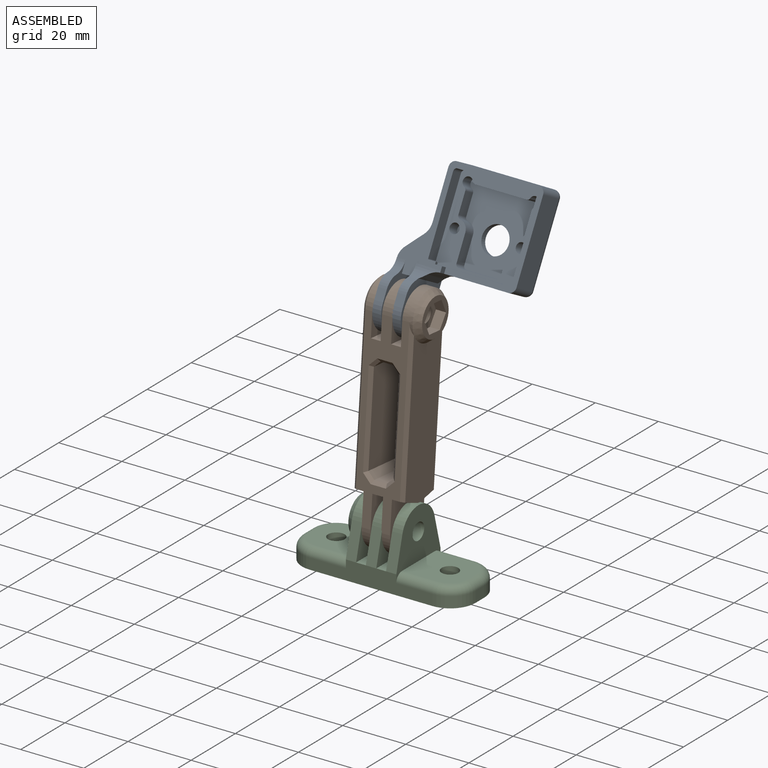
[diagram: assembled view]
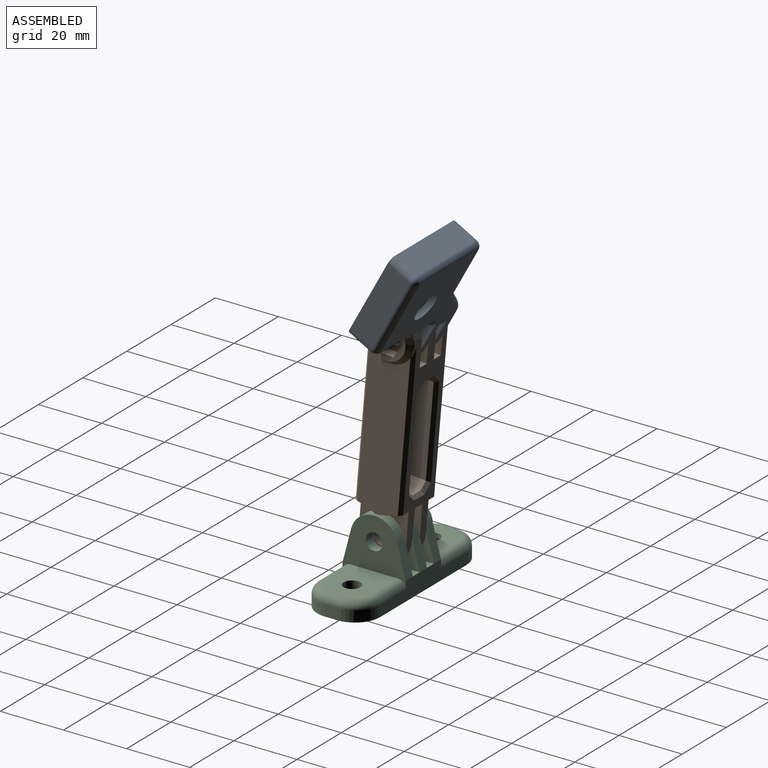
[diagram: assembled view, second angle]
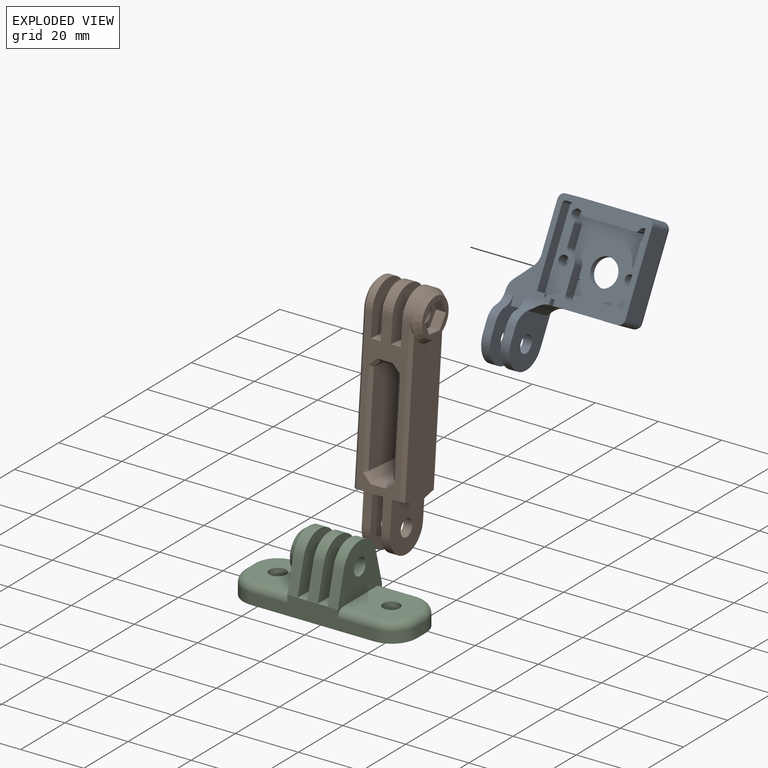
[diagram: exploded view]
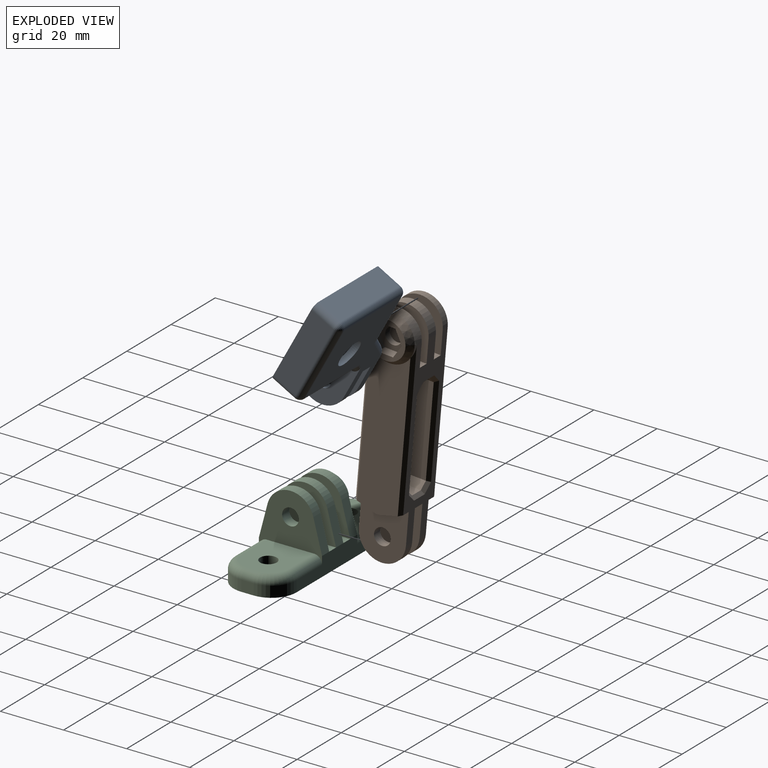
[diagram: exploded view, second angle]
ASSEMBLY  parts=3 mates=2
PART A: 92 faces, bbox 39x48.1x15.1 mm
  f0: plane 24.5x4mm, normal (0,1,0), area 74mm2, adj f8,f14,f73,f74,f75,f77,f78,f79
  f1: plane 23.5x4mm, normal (1,0,0), area 94mm2, adj f8,f14,f89,f90
  f2: plane 3.5x2.8mm, normal (0,0,1), area 9.8mm2, adj f4,f6,f42,f62
  f3: plane 38.5x35.5mm, normal (0,0,-1), area 711.2mm2, adj f4,f38,f42,f43,f46,f50,f51,f52
  f4: cylinder r=7.5mm len=15mm, axis (-1,0,0), area 66mm2, adj f2,f3,f42,f62
  f5: cylinder r=2.65mm len=5.3mm, axis (-1,0,0), area 46.6mm2, adj f42,f62
  f6: cylinder r=5mm len=4.33mm, axis (-1,0,0), area 14.7mm2, adj f2,f42,f62,f63
  f7: plane 21.43x8mm, normal (0,1,0), area 137.5mm2, adj f8,f40,f41,f54,f58,f81
  f8: plane 37.49x32mm, normal (0,0,1), area 216mm2, adj f0,f1,f7,f9,f10,f11,f12,f13
  f9: plane 14.93x8mm, normal (1,0,0), area 119.4mm2, adj f8,f51,f56,f85
  f10: plane 25x8mm, normal (-1,0,0), area 200mm2, adj f8,f53,f81,f83
  f11: plane 26x8mm, normal (0,-1,0), area 208mm2, adj f8,f52,f83,f85
  f12: plane 23.5x4mm, normal (-1,0,0), area 94mm2, adj f8,f14,f87,f88
  f13: plane 24.5x4mm, normal (0,-1,0), area 60.8mm2, adj f8,f14,f39,f40,f41,f65,f66,f68
  f14: plane 26.5x25.9mm, normal (0,0,1), area 273.6mm2, adj f0,f1,f12,f13,f15,f16,f17,f18
  f15: plane 6.44x4mm, normal (1,0,0), area 25.7mm2, adj f14,f23,f30,f31
  f16: cylinder r=1.55mm len=4mm, axis (0,0,1), area 24.2mm2, adj f14,f23,f30,f37
  f17: plane 16.31x4mm, normal (0,1,0), area 65.2mm2, adj f14,f23,f36,f37
  f18: cylinder r=1.55mm len=4mm, axis (0,0,1), area 24.2mm2, adj f14,f23,f35,f36
  f19: plane 6.44x4mm, normal (-1,0,0), area 25.7mm2, adj f14,f23,f34,f35
  f20: plane 8.25x4mm, normal (-1,0,0), area 33mm2, adj f14,f23,f29,f33
  f21: plane 12x4mm, normal (0,-1,0), area 48mm2, adj f14,f23,f32,f33
  f22: plane 8.25x4mm, normal (1,0,0), area 33mm2, adj f14,f23,f28,f32
  f23: plane 24.1x23.55mm, normal (0,0,1), area 334.3mm2, adj f15,f16,f17,f18,f19,f20,f21,f22
  f24: cylinder r=1.55mm len=4mm, axis (0,0,1), area 39mm2, adj f14,f25
  f25: plane 3.1x3.1mm, normal (0,0,1), area 7.5mm2, adj f24
  f26: cylinder r=1.55mm len=4mm, axis (0,0,1), area 39mm2, adj f14,f27
  f27: plane 3.1x3.1mm, normal (0,0,1), area 7.5mm2, adj f26
  f28: cylinder r=3mm len=4mm, axis (0,0,1), area 17.3mm2, adj f14,f22,f23,f31
  f29: cylinder r=3mm len=4mm, axis (0,0,1), area 17.3mm2, adj f14,f20,f23,f34
  f30: cylinder r=1mm len=4mm, axis (0,0,1), area 4.7mm2, adj f14,f15,f16,f23
  f31: cylinder r=1mm len=4mm, axis (0,0,1), area 5.8mm2, adj f14,f15,f23,f28
  f32: cylinder r=1mm len=4mm, axis (0,0,1), area 6.3mm2, adj f14,f21,f22,f23
  f33: cylinder r=1mm len=4mm, axis (0,0,-1), area 6.3mm2, adj f14,f20,f21,f23
  f34: cylinder r=1mm len=4mm, axis (0,0,1), area 5.8mm2, adj f14,f19,f23,f29
  f35: cylinder r=1mm len=4mm, axis (0,0,1), area 4.7mm2, adj f14,f18,f19,f23
  f36: cylinder r=1mm len=4mm, axis (0,0,1), area 4.7mm2, adj f14,f17,f18,f23
  f37: cylinder r=1mm len=4mm, axis (0,0,1), area 4.7mm2, adj f14,f16,f17,f23
  f38: cylinder r=4.25mm len=8.5mm, axis (0,0,1), area 53.4mm2, adj f3,f23
  f39: plane 2.04x1.75mm, normal (-1,0,0), area 3.5mm2, adj f8,f13,f41,f58,f63
  f40: plane 2x1.75mm, normal (1,0,0), area 3.5mm2, adj f7,f8,f13,f41
  f41: plane 17.1x1.75mm, normal (0,0,1), area 29.9mm2, adj f7,f13,f39,f40,f58
  f42: plane 18.83x15mm, normal (-1,0,0), area 189.9mm2, adj f2,f3,f4,f5,f6,f49,f55,f63
  f43: cylinder r=7.5mm len=15mm, axis (-1,0,0), area 66mm2, adj f3,f45,f46,f61
  f44: cylinder r=2.65mm len=5.3mm, axis (-1,0,0), area 46.6mm2, adj f46,f61
  f45: plane 3.5x2.8mm, normal (0,0,1), area 9.8mm2, adj f43,f46,f47,f61
  f46: plane 19.43x15.01mm, normal (1,0,0), area 224.7mm2, adj f3,f43,f44,f45,f47,f50,f64,f91
  f47: cylinder r=5mm len=4.33mm, axis (-1,0,0), area 14.7mm2, adj f45,f46,f61,f64
  f48: plane 8x4.57mm, normal (0.71,-0.71,0), area 51.7mm2, adj f8,f50,f56,f91
  f49: plane 9.7x1.64mm, normal (-0.71,0.71,0), area 19.5mm2, adj f42,f55,f58,f63
  f50: cylinder r=2mm len=10.91mm, axis (0.71,0.71,0), area 30.6mm2, adj f3,f46,f48,f57,f91
  f51: cylinder r=2mm len=17.83mm, axis (0,1,0), area 50.2mm2, adj f3,f9,f57,f86
  f52: cylinder r=2mm len=26mm, axis (1,0,0), area 81.7mm2, adj f3,f11,f84,f86
  f53: cylinder r=2mm len=25mm, axis (0,-1,0), area 78.5mm2, adj f3,f10,f82,f84
  f54: cylinder r=2mm len=24.33mm, axis (-1,0,0), area 70.6mm2, adj f3,f7,f59,f82
  f55: cylinder r=2mm len=5mm, axis (-0.71,-0.71,0), area 7.8mm2, adj f3,f42,f49,f59
  f56: cylinder r=5mm len=8mm, axis (0,0,-1), area 31.4mm2, adj f8,f9,f48,f57
  f57: bspline ~3.54x3.46mm, area 8.4mm2, adj f50,f51,f56
  f58: cylinder r=5mm len=8.47mm, axis (0,0,-1), area 31.8mm2, adj f7,f39,f41,f49,f59,f63
  f59: bspline ~3.54x3.46mm, area 8.4mm2, adj f54,f55,f58
  f60: plane 10x3.4mm, normal (0,1,0), area 34mm2, adj f3,f8,f61,f62
  f61: plane 19.66x15mm, normal (-1,0,0), area 190.4mm2, adj f3,f8,f43,f44,f45,f47,f60,f64
  f62: plane 19.66x15mm, normal (1,0,0), area 190.4mm2, adj f2,f3,f4,f5,f6,f8,f60,f63
  f63: cylinder r=5mm len=7.75mm, axis (-1,0,0), area 23.4mm2, adj f6,f8,f39,f42,f49,f58,f62
  f64: cylinder r=5mm len=4.33mm, axis (-1,0,0), area 14.7mm2, adj f8,f46,f47,f61,f91
  f65: plane 2.34x0.45mm, normal (0,0,-1), area 0.9mm2, adj f13,f66,f72,f88
  f66: plane 1x0.75mm, normal (-1,0,0), area 0.7mm2, adj f8,f13,f65,f67,f72
  f67: plane 2.47x0.7mm, normal (0,-1,0), area 1.7mm2, adj f8,f66,f72,f88
  f68: plane 1x0.75mm, normal (1,0,0), area 0.7mm2, adj f8,f13,f69,f70,f71
  f69: plane 2.34x0.45mm, normal (0,0,-1), area 0.9mm2, adj f13,f68,f71,f89
  f70: plane 2.47x0.7mm, normal (0,-1,0), area 1.7mm2, adj f8,f68,f71,f89
  f71: plane 2.48x0.31mm, normal (0,-0.71,-0.71), area 1mm2, adj f68,f69,f70,f89
  f72: plane 2.48x0.31mm, normal (0,-0.71,-0.71), area 1mm2, adj f65,f66,f67,f88
  f73: plane 2x0.4mm, normal (-1,0,0), area 0.8mm2, adj f0,f14,f75,f76
  f74: plane 2x0.4mm, normal (1,0,0), area 0.8mm2, adj f0,f14,f75,f76
  f75: plane 6x0.4mm, normal (0,0,-1), area 2.4mm2, adj f0,f73,f74,f76
  f76: plane 6x2mm, normal (0,1,0), area 12mm2, adj f14,f73,f74,f75
  f77: plane 2x0.4mm, normal (-1,0,0), area 0.8mm2, adj f0,f14,f79,f80
  f78: plane 2x0.4mm, normal (1,0,0), area 0.8mm2, adj f0,f14,f79,f80
  f79: plane 6x0.4mm, normal (0,0,-1), area 2.4mm2, adj f0,f77,f78,f80
  f80: plane 6x2mm, normal (0,1,0), area 12mm2, adj f14,f77,f78,f79
  f81: cylinder r=2mm len=8mm, axis (0,0,-1), area 25.1mm2, adj f7,f8,f10,f82
  f82: sphere r=2mm, area 6.3mm2, adj f53,f54,f81
  f83: cylinder r=2mm len=8mm, axis (0,0,1), area 25.1mm2, adj f8,f10,f11,f84
  f84: sphere r=2mm, area 6.3mm2, adj f52,f53,f83
  f85: cylinder r=2mm len=8mm, axis (0,0,-1), area 25.1mm2, adj f8,f9,f11,f86
  f86: sphere r=2mm, area 6.3mm2, adj f51,f52,f85
  f87: cylinder r=1mm len=4mm, axis (0,0,-1), area 6.3mm2, adj f0,f8,f12,f14
  f88: cylinder r=1mm len=4mm, axis (0,0,1), area 5mm2, adj f8,f12,f13,f14,f65,f67,f72
  f89: cylinder r=1mm len=4mm, axis (0,0,-1), area 5mm2, adj f1,f8,f13,f14,f69,f70,f71
  f90: cylinder r=1mm len=4mm, axis (0,0,1), area 6.3mm2, adj f0,f1,f8,f14
  f91: cylinder r=5mm len=9.93mm, axis (0,0,-1), area 35.8mm2, adj f8,f46,f48,f50,f64
PART B: 71 faces, bbox 75x18x15 mm
  f0: cylinder r=2.65mm len=5.3mm, axis (0,-1,0), area 34.1mm2, adj f14,f38
  f1: plane 12x12mm, normal (0,1,0), area 52mm2, adj f32,f33,f34,f35,f36,f37,f39
  f2: plane 48.26x13mm, normal (0,1,0), area 582.5mm2, adj f18,f39,f55,f56,f69,f70
  f3: plane 58.5x13mm, normal (0,-1,0), area 710.1mm2, adj f10,f23,f44,f45,f46,f67,f68
  f4: plane 60x14mm, normal (0,0,1), area 372.9mm2, adj f6,f7,f8,f9,f11,f12,f13,f14
  f5: plane 60x14mm, normal (0,0,-1), area 372.9mm2, adj f6,f7,f8,f9,f11,f12,f13,f14
  f6: cylinder r=7.5mm len=15mm, axis (0,-1,0), area 66mm2, adj f4,f5,f21,f24
  f7: cylinder r=7.5mm len=15mm, axis (0,-1,0), area 66mm2, adj f4,f5,f19,f22
  f8: cylinder r=7.5mm len=15mm, axis (0,-1,0), area 77.8mm2, adj f4,f5,f13,f17
  f9: cylinder r=7.5mm len=15mm, axis (0,-1,0), area 81.8mm2, adj f4,f5,f14,f39,f55,f56
  f10: cylinder r=2.65mm len=5.3mm, axis (0,-1,0), area 54.1mm2, adj f3,f16
  f11: cylinder r=7.5mm len=15mm, axis (0,-1,0), area 53mm2, adj f4,f5,f16,f46
  f12: plane 15x3.1mm, normal (-1,0,0), area 46.5mm2, adj f4,f5,f13,f14
  f13: plane 15x15mm, normal (0,1,0), area 178.8mm2, adj f4,f5,f8,f12,f27
  f14: plane 15x15mm, normal (0,-1,0), area 178.8mm2, adj f0,f4,f5,f9,f12
  f15: plane 15x3.1mm, normal (-1,0,0), area 46.5mm2, adj f4,f5,f16,f17
  f16: plane 15x15mm, normal (0,1,0), area 178.8mm2, adj f4,f5,f10,f11,f15
  f17: plane 15x15mm, normal (0,-1,0), area 178.8mm2, adj f4,f5,f8,f15,f27
  f18: plane 3.5x1.05mm, normal (1,0,0), area 3.7mm2, adj f2,f19,f69,f70
  f19: plane 17.5x15mm, normal (0,1,0), area 200.2mm2, adj f4,f5,f7,f18,f25,f69,f70
  f20: plane 3.4x1.05mm, normal (1,0,0), area 3.6mm2, adj f21,f22,f65,f66
  f21: plane 17.5x15mm, normal (0,1,0), area 200.2mm2, adj f4,f5,f6,f20,f26,f65,f66
  f22: plane 17.5x15mm, normal (0,-1,0), area 200.2mm2, adj f4,f5,f7,f20,f25,f65,f66
  f23: plane 3.5x1.05mm, normal (1,0,0), area 3.7mm2, adj f3,f24,f67,f68
  f24: plane 17.5x15mm, normal (0,-1,0), area 200.2mm2, adj f4,f5,f6,f23,f26,f67,f68
  f25: cylinder r=2.65mm len=5.3mm, axis (0,-1,0), area 46.6mm2, adj f19,f22
  f26: cylinder r=2.65mm len=5.3mm, axis (0,-1,0), area 46.6mm2, adj f21,f24
  f27: cylinder r=2.65mm len=5.3mm, axis (0,-1,0), area 54.9mm2, adj f13,f17
  f28: plane 13x4mm, normal (1,0,0), area 52mm2, adj f42,f43,f53,f59
  f29: plane 29x13mm, normal (0,1,0), area 377mm2, adj f40,f43,f49,f63
  f30: plane 13x4mm, normal (-1,0,0), area 52mm2, adj f40,f41,f48,f62
  f31: plane 29x13mm, normal (0,-1,0), area 377mm2, adj f41,f42,f52,f58
  f32: plane 4.85x3.2mm, normal (1,0,0), area 15.5mm2, adj f1,f33,f37,f38
  f33: plane 4.2x3.2mm, normal (0.5,0,-0.87), area 15.5mm2, adj f1,f32,f34,f38
  f34: plane 4.2x3.2mm, normal (-0.5,0,-0.87), area 15.5mm2, adj f1,f33,f35,f38
  f35: plane 4.85x3.2mm, normal (-1,0,0), area 15.5mm2, adj f1,f34,f36,f38
  f36: plane 4.2x3.2mm, normal (-0.5,0,0.87), area 15.5mm2, adj f1,f35,f37,f38
  f37: plane 4.2x3.2mm, normal (0.5,0,0.87), area 15.5mm2, adj f1,f32,f36,f38
  f38: plane 9.7x8.4mm, normal (0,1,0), area 39mm2, adj f0,f32,f33,f34,f35,f36,f37
  f39: cone r=6mm half-angle=36.9deg, axis (0,-1,0), area 106mm2, adj f1,f2,f9
  f40: plane 13x2mm, normal (-0.71,0.71,0), area 36.8mm2, adj f29,f30,f47,f64
  f41: plane 13x2mm, normal (-0.71,-0.71,0), area 36.8mm2, adj f30,f31,f50,f60
  f42: plane 13x2mm, normal (0.71,-0.71,0), area 36.8mm2, adj f28,f31,f54,f57
  f43: plane 13x2mm, normal (0.71,0.71,0), area 36.8mm2, adj f28,f29,f51,f61
  f44: plane 50.29x1mm, normal (0,-0.71,0.71), area 70.9mm2, adj f3,f4,f46,f68
  f45: plane 50.29x1mm, normal (0,-0.71,-0.71), area 70.9mm2, adj f3,f5,f46,f67
  f46: cone r=6.5mm half-angle=45deg, axis (0,1,0), area 31.1mm2, adj f3,f11,f44,f45
  f47: plane 3x3mm, normal (-0.5,0.5,-0.71), area 4.6mm2, adj f5,f40,f48,f49
  f48: plane 4.83x1mm, normal (-0.71,0,-0.71), area 6.2mm2, adj f5,f30,f47,f50
  f49: plane 29.83x1mm, normal (0,0.71,-0.71), area 41.6mm2, adj f5,f29,f47,f51
  f50: plane 3x3mm, normal (-0.5,-0.5,-0.71), area 4.6mm2, adj f5,f41,f48,f52
  f51: plane 3x3mm, normal (0.5,0.5,-0.71), area 4.6mm2, adj f5,f43,f49,f53
  f52: plane 29.83x1mm, normal (0,-0.71,-0.71), area 41.6mm2, adj f5,f31,f50,f54
  f53: plane 4.83x1mm, normal (0.71,0,-0.71), area 6.2mm2, adj f5,f28,f51,f54
  f54: plane 3x3mm, normal (0.5,-0.5,-0.71), area 4.6mm2, adj f5,f42,f52,f53
  f55: plane 50.29x1mm, normal (0,0.71,-0.71), area 67.3mm2, adj f2,f5,f9,f70
  f56: plane 50.29x1mm, normal (0,0.71,0.71), area 67.3mm2, adj f2,f4,f9,f69
  f57: plane 3x3mm, normal (0.5,-0.5,0.71), area 4.6mm2, adj f4,f42,f58,f59
  f58: plane 29.83x1mm, normal (0,-0.71,0.71), area 41.6mm2, adj f4,f31,f57,f60
  f59: plane 4.83x1mm, normal (0.71,0,0.71), area 6.2mm2, adj f4,f28,f57,f61
  f60: plane 3x3mm, normal (-0.5,-0.5,0.71), area 4.6mm2, adj f4,f41,f58,f62
  f61: plane 3x3mm, normal (0.5,0.5,0.71), area 4.6mm2, adj f4,f43,f59,f63
  f62: plane 4.83x1mm, normal (-0.71,0,0.71), area 6.2mm2, adj f4,f30,f60,f64
  f63: plane 29.83x1mm, normal (0,0.71,0.71), area 41.6mm2, adj f4,f29,f61,f64
  f64: plane 3x3mm, normal (-0.5,0.5,0.71), area 4.6mm2, adj f4,f40,f62,f63
  f65: plane 6.98x3.4mm, normal (0.96,0,0.28), area 24.7mm2, adj f4,f20,f21,f22
  f66: plane 6.98x3.4mm, normal (0.96,0,-0.28), area 24.7mm2, adj f5,f20,f21,f22
  f67: plane 6.98x3.5mm, normal (0.96,0,-0.28), area 24.9mm2, adj f3,f5,f23,f24,f45
  f68: plane 6.98x3.5mm, normal (0.96,0,0.28), area 24.9mm2, adj f3,f4,f23,f24,f44
  f69: plane 6.98x3.5mm, normal (0.96,0,0.28), area 24.9mm2, adj f2,f4,f18,f19,f56
  f70: plane 6.98x3.5mm, normal (0.96,0,-0.28), area 24.9mm2, adj f2,f5,f18,f19,f55
PART C: 52 faces, bbox 56.3x21.3x22 mm
  f0: cylinder r=2.65mm len=5.3mm, axis (-1,0,0), area 34.1mm2, adj f24,f34
  f1: plane 12x12mm, normal (-1,0,0), area 52mm2, adj f28,f29,f30,f31,f32,f33,f37
  f2: cylinder r=7.5mm len=14.5mm, axis (-1,0,0), area 64mm2, adj f4,f6,f24,f37
  f3: cylinder r=7.5mm len=14.5mm, axis (-1,0,0), area 65mm2, adj f5,f7,f22,f25
  f4: plane 10.41x3.25mm, normal (0,-0.97,0.26), area 35mm2, adj f2,f12,f20,f24
  f5: plane 10.41x3.3mm, normal (0,-0.97,0.26), area 35.5mm2, adj f3,f12,f22,f25
  f6: plane 10.41x3.25mm, normal (0,0.97,0.26), area 35mm2, adj f2,f10,f20,f24
  f7: plane 10.41x3.3mm, normal (0,0.97,0.26), area 35.5mm2, adj f3,f10,f22,f25
  f8: plane 17x15mm, normal (0,0,1), area 220mm2, adj f19,f35,f42,f43,f44,f45,f46
  f9: plane 4x3.5mm, normal (1,0,0), area 14mm2, adj f14,f38,f41,f44
  f10: plane 39x6mm, normal (0,1,0), area 176.5mm2, adj f6,f7,f14,f18,f19,f20,f23,f26
  f11: plane 4x3.5mm, normal (-1,0,0), area 14mm2, adj f14,f39,f40,f49
  f12: plane 39x6mm, normal (0,-1,0), area 176.5mm2, adj f4,f5,f14,f16,f19,f20,f23,f26
  f13: plane 17x15mm, normal (0,0,1), area 220mm2, adj f20,f36,f47,f48,f49,f50,f51
  f14: plane 55x20mm, normal (0,0,-1), area 1000.9mm2, adj f9,f10,f11,f12,f35,f36,f38,f39
  f15: cylinder r=7.5mm len=14.5mm, axis (-1,0,0), area 64mm2, adj f16,f18,f19,f21
  f16: plane 10.41x3.25mm, normal (0,-0.97,0.26), area 35mm2, adj f12,f15,f19,f21
  f17: cylinder r=2.65mm len=5.3mm, axis (-1,0,0), area 54.1mm2, adj f19,f21
  f18: plane 10.41x3.25mm, normal (0,0.97,0.26), area 35mm2, adj f10,f15,f19,f21
  f19: plane 20x18.5mm, normal (1,0,0), area 220.2mm2, adj f8,f10,f12,f15,f16,f17,f18,f42
  f20: plane 20x12.91mm, normal (-1,0,0), area 65.6mm2, adj f4,f6,f10,f12,f13,f37,f47,f51
  f21: plane 20x16mm, normal (-1,0,0), area 217.6mm2, adj f15,f16,f17,f18,f23
  f22: plane 20x16mm, normal (1,0,0), area 217.6mm2, adj f3,f5,f7,f23,f27
  f23: plane 20x3.1mm, normal (0,0,1), area 62mm2, adj f10,f12,f21,f22
  f24: plane 20x16mm, normal (1,0,0), area 217.6mm2, adj f0,f2,f4,f6,f26
  f25: plane 20x16mm, normal (-1,0,0), area 217.6mm2, adj f3,f5,f7,f26,f27
  f26: plane 20x3.1mm, normal (0,0,1), area 62mm2, adj f10,f12,f24,f25
  f27: cylinder r=2.65mm len=5.3mm, axis (-1,0,0), area 54.9mm2, adj f22,f25
  f28: plane 4.2x3.2mm, normal (0,0.87,-0.5), area 15.5mm2, adj f1,f29,f33,f34
  f29: plane 4.85x3.2mm, normal (0,0,-1), area 15.5mm2, adj f1,f28,f30,f34
  f30: plane 4.2x3.2mm, normal (0,-0.87,-0.5), area 15.5mm2, adj f1,f29,f31,f34
  f31: plane 4.2x3.2mm, normal (0,-0.87,0.5), area 15.5mm2, adj f1,f30,f32,f34
  f32: plane 4.85x3.2mm, normal (0,0,1), area 15.5mm2, adj f1,f31,f33,f34
  f33: plane 4.2x3.2mm, normal (0,0.87,0.5), area 15.5mm2, adj f1,f28,f32,f34
  f34: plane 9.7x8.4mm, normal (-1,0,0), area 39mm2, adj f0,f28,f29,f30,f31,f32,f33
  f35: cylinder r=2.65mm len=6mm, axis (0,0,1), area 99.9mm2, adj f8,f14
  f36: cylinder r=2.65mm len=6mm, axis (0,0,1), area 99.9mm2, adj f13,f14
  f37: cone r=6mm half-angle=36.9deg, axis (1,0,0), area 106mm2, adj f1,f2,f20
  f38: cylinder r=8mm len=8mm, axis (0,0,1), area 44mm2, adj f9,f10,f14,f45
  f39: cylinder r=8mm len=8mm, axis (0,0,-1), area 44mm2, adj f10,f11,f14,f50
  f40: cylinder r=8mm len=8mm, axis (0,0,1), area 44mm2, adj f11,f12,f14,f48
  f41: cylinder r=8mm len=8mm, axis (0,0,-1), area 44mm2, adj f9,f12,f14,f43
  f42: cylinder r=2.5mm len=11.5mm, axis (-1,0,0), area 45.2mm2, adj f8,f12,f19,f43
  f43: torus R=5.5mm, axis (0,0,1), area 43.7mm2, adj f8,f41,f42,f44
  f44: cylinder r=2.5mm len=4mm, axis (0,-1,0), area 15.7mm2, adj f8,f9,f43,f45
  f45: torus R=5.5mm, axis (0,0,1), area 43.7mm2, adj f8,f38,f44,f46
  f46: cylinder r=2.5mm len=11.5mm, axis (1,0,0), area 45.2mm2, adj f8,f10,f19,f45
  f47: cylinder r=2.5mm len=11.5mm, axis (-1,0,0), area 45.2mm2, adj f12,f13,f20,f48
  f48: torus R=5.5mm, axis (0,0,1), area 43.7mm2, adj f13,f40,f47,f49
  f49: cylinder r=2.5mm len=4mm, axis (0,1,0), area 15.7mm2, adj f11,f13,f48,f50
  f50: torus R=5.5mm, axis (0,0,1), area 43.7mm2, adj f13,f39,f49,f51
  f51: cylinder r=2.5mm len=11.5mm, axis (1,0,0), area 45.2mm2, adj f10,f13,f20,f50
PLACE A rot(axis=(0,0.51,-0.86),180deg) t=(17.5,24.23,93.5)mm
PLACE B rot(axis=(0.56,0.56,-0.61),117.2deg) t=(-0.25,10.06,43.74)mm
PLACE C at identity fixed
MATE revolute C.f2 <-> B.f6  axis (1,0,0) through (-4.75,0,14.5)mm
MATE revolute B.f0 <-> A.f4  axis (1,0,0) through (-5,5.18,74.28)mm
